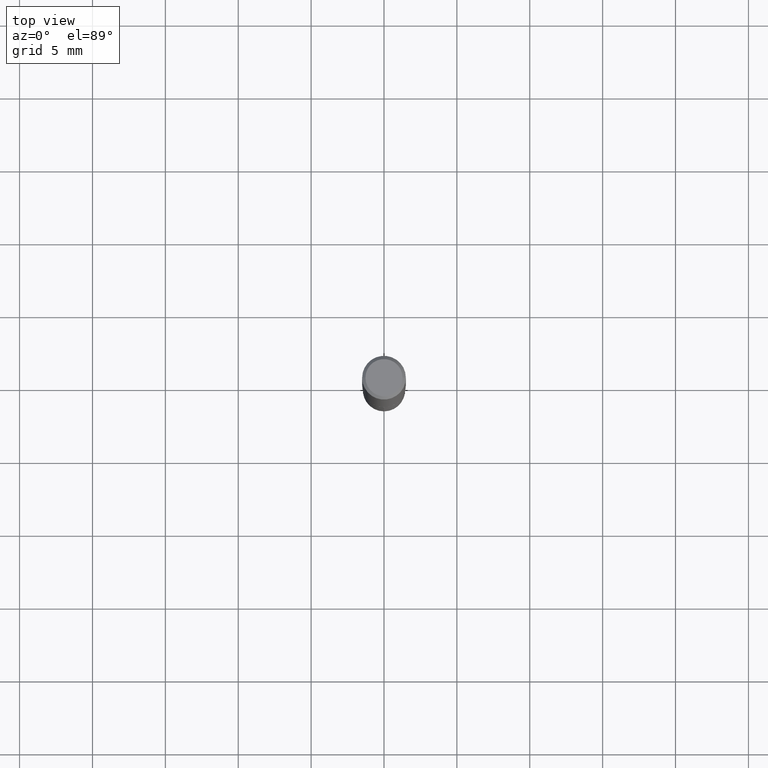
[diagram: clean part render]
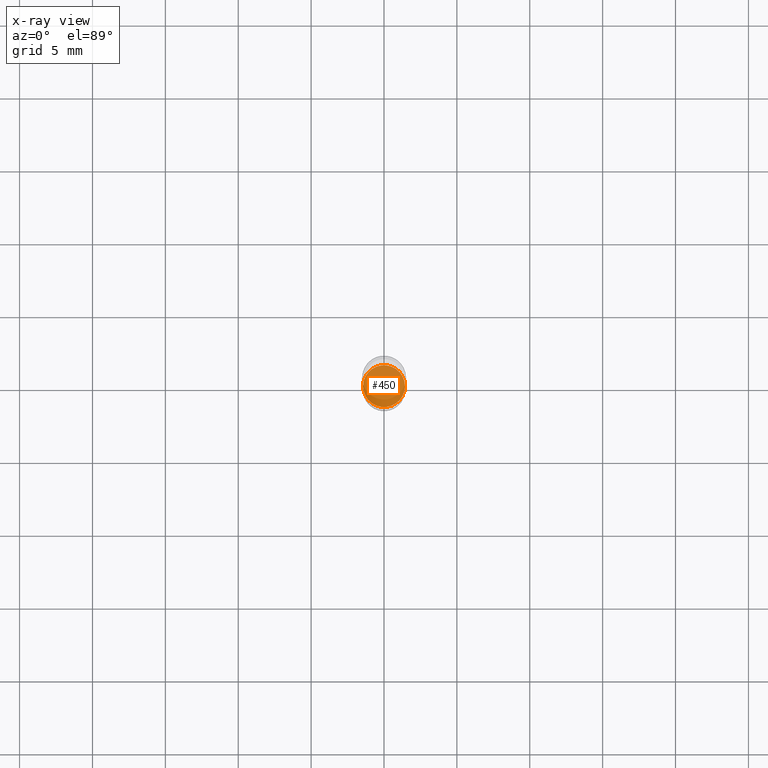
[diagram: x-ray — body ghosted, one internal face saturated and labeled with its STEP entity id]
A machine part, top view, then the same camera in x-ray: the body is ghosted and one INTERNAL B-rep face — a face not visible from any outside direction — is saturated and labeled: STEP entity #450.
In plain terms, the highlighted planar face has unit normal (-0, 0, 1).
Its self-contained STEP definition (entity closure, byte-faithful):
#4 = DIRECTION ( 'NONE',  ( -2.445468806185136597E-29, 3.491481338843145583E-15, 1.000000000000000000 ) ) ;
#15 = CIRCLE ( 'NONE', #161, 0.05659999999999999060 ) ;
#36 = FACE_OUTER_BOUND ( 'NONE', #457, .T. ) ;
#54 = ORIENTED_EDGE ( 'NONE', *, *, #166, .F. ) ;
#61 = AXIS2_PLACEMENT_3D ( 'NONE', #298, #102, #258 ) ;
#79 = ORIENTED_EDGE ( 'NONE', *, *, #377, .F. ) ;
#86 = DIRECTION ( 'NONE',  ( 1.000000000000000000, -6.982962677686269077E-15, 0.000000000000000000 ) ) ;
#102 = DIRECTION ( 'NONE',  ( -2.438088387897960049E-29, 3.491481338843145188E-15, 1.000000000000000000 ) ) ;
#111 = DIRECTION ( 'NONE',  ( 1.000000000000000000, -6.982962677686269077E-15, 0.000000000000000000 ) ) ;
#161 = AXIS2_PLACEMENT_3D ( 'NONE', #355, #4, #86 ) ;
#164 = AXIS2_PLACEMENT_3D ( 'NONE', #344, #454, #111 ) ;
#166 = EDGE_CURVE ( 'NONE', #233, #250, #415, .T. ) ;
#233 = VERTEX_POINT ( 'NONE', #348 ) ;
#250 = VERTEX_POINT ( 'NONE', #268 ) ;
#258 = DIRECTION ( 'NONE',  ( 1.000000000000000000, -6.982962677686265922E-15, 4.876176775795935793E-29 ) ) ;
#268 = CARTESIAN_POINT ( 'NONE',  ( 0.05659999999999999060, -5.055315830510987250E-15, -1.334699999999999553 ) ) ;
#293 = PLANE ( 'NONE',  #61 ) ;
#298 = CARTESIAN_POINT ( 'NONE',  ( 7.762423254075853712E-29, 1.781964940338796990E-15, -1.334699999999999775 ) ) ;
#344 = CARTESIAN_POINT ( 'NONE',  ( 3.263967215615300286E-29, -4.660080142953944642E-15, -1.334699999999999553 ) ) ;
#348 = CARTESIAN_POINT ( 'NONE',  ( -0.05659999999999999060, -4.255263727339616852E-15, -1.334699999999999553 ) ) ;
#355 = CARTESIAN_POINT ( 'NONE',  ( 3.263967215615300286E-29, -4.660080142953944642E-15, -1.334699999999999553 ) ) ;
#377 = EDGE_CURVE ( 'NONE', #250, #233, #15, .T. ) ;
#415 = CIRCLE ( 'NONE', #164, 0.05659999999999999060 ) ;
#450 = ADVANCED_FACE ( 'NONE', ( #36 ), #293, .F. ) ;
#454 = DIRECTION ( 'NONE',  ( -2.445468806185136597E-29, 3.491481338843145583E-15, 1.000000000000000000 ) ) ;
#457 = EDGE_LOOP ( 'NONE', ( #79, #54 ) ) ;